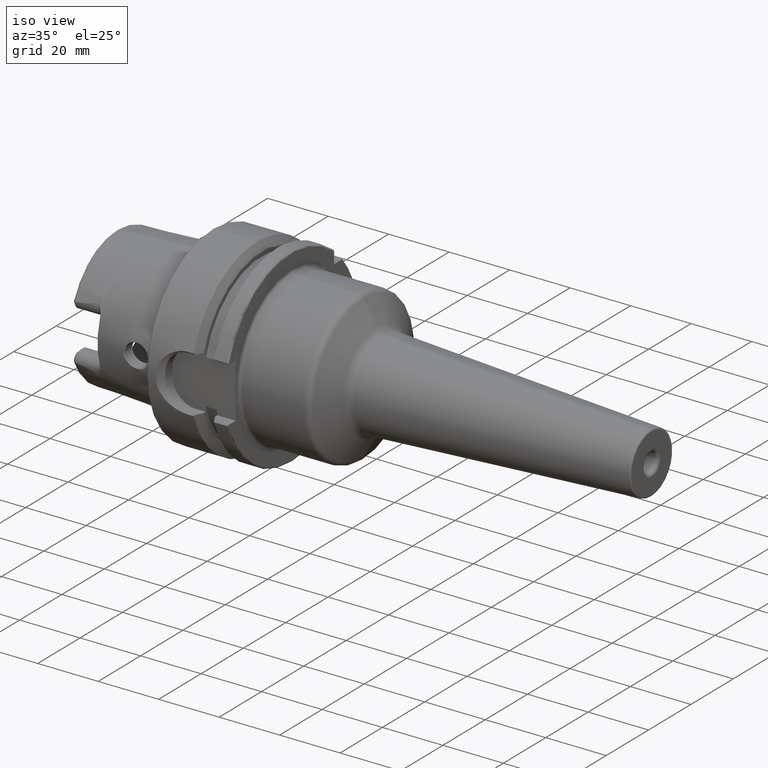
[diagram: clean part render]
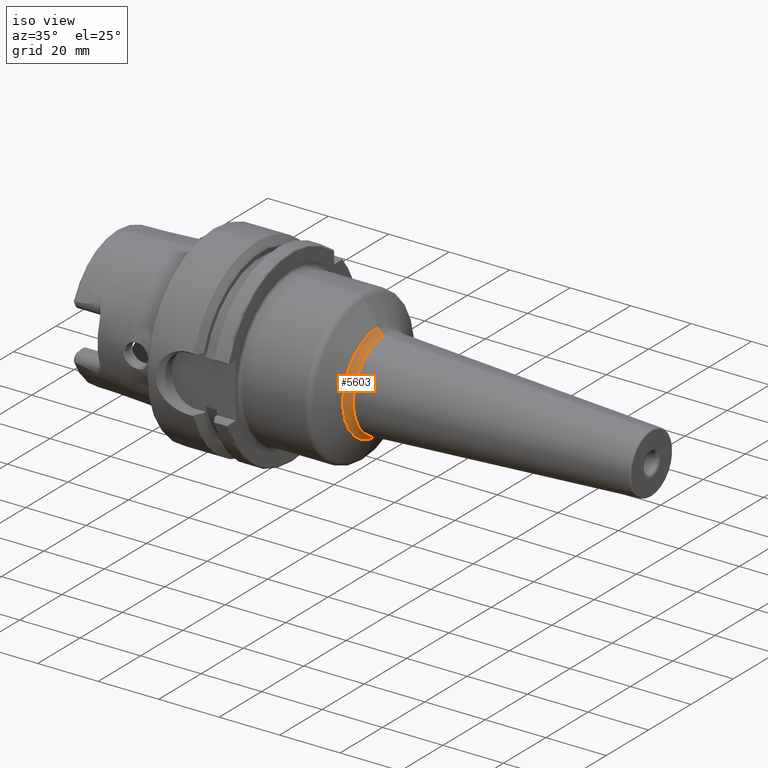
[diagram: same view with one face highlighted and labeled with its STEP entity id]
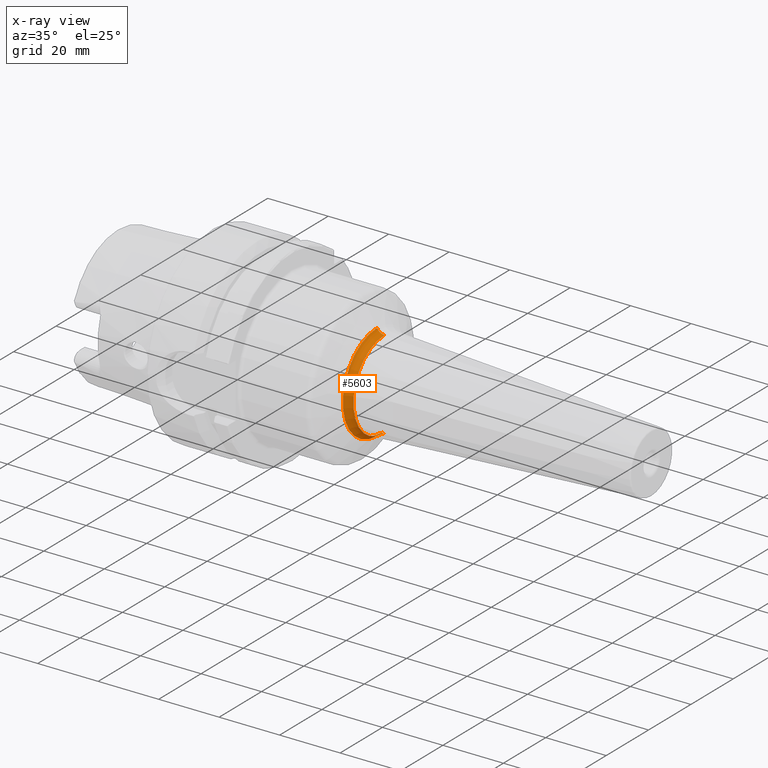
[diagram: x-ray of the same camera — body ghosted, the highlighted face saturated]
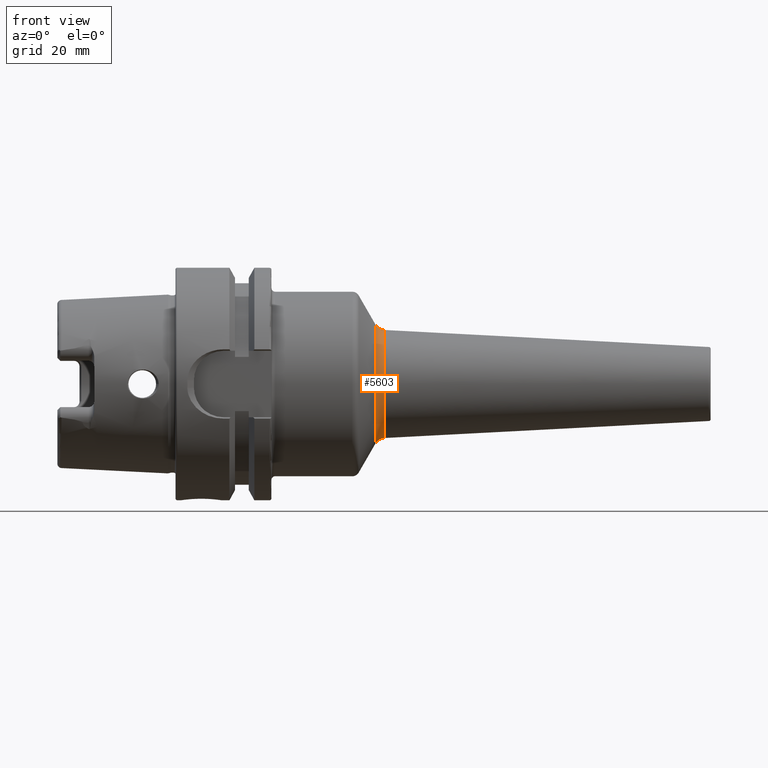
[diagram: same view with one face highlighted and labeled with its STEP entity id]
A machine part, iso view. The second image highlights one B-rep face of the part: STEP entity #5603.
The next image is the same camera in x-ray: the body ghosted, the highlighted face saturated — about 0% of this face is hidden behind the body in this view.
A second angle (front view) of the same face is appended — the face is thin or edge-on in the first view.
In plain terms, the highlighted toroidal blend (fillet) surface has major radius 17.6273 mm and minor (blend) radius 3 mm.
Its self-contained STEP definition (entity closure, byte-faithful):
#2326=CARTESIAN_POINT('',(5.418556645054E1,0.E0,0.E0));
#2327=DIRECTION('',(1.E0,0.E0,0.E0));
#2328=DIRECTION('',(0.E0,0.E0,1.E0));
#2329=AXIS2_PLACEMENT_3D('',#2326,#2327,#2328);
#2344=CARTESIAN_POINT('',(5.678364266190E1,1.805333660343E-12,
1.762734042252E1));
#2345=DIRECTION('',(0.E0,-1.E0,1.024146045747E-13));
#2346=DIRECTION('',(-8.660254037845E-1,-5.120730228734E-14,-4.999999999999E-1));
#2347=AXIS2_PLACEMENT_3D('',#2344,#2345,#2346);
#2349=CARTESIAN_POINT('',(5.678364266190E1,-1.807387572939E-12,
-1.762734042252E1));
#2350=DIRECTION('',(0.E0,1.E0,-1.025325657711E-13));
#2351=DIRECTION('',(-8.660254037845E-1,5.126628288553E-14,4.999999999999E-1));
#2352=AXIS2_PLACEMENT_3D('',#2349,#2350,#2351);
#2393=CARTESIAN_POINT('',(5.662663479317E1,0.E0,0.E0));
#2394=DIRECTION('',(1.E0,0.E0,0.E0));
#2395=DIRECTION('',(0.E0,0.E0,1.E0));
#2396=AXIS2_PLACEMENT_3D('',#2393,#2394,#2395);
#2942=CARTESIAN_POINT('',(5.418556645054E1,0.E0,1.612734042252E1));
#2943=CARTESIAN_POINT('',(5.418556645054E1,0.E0,-1.612734042252E1));
#2944=VERTEX_POINT('',#2942);
#2945=VERTEX_POINT('',#2943);
#2946=CARTESIAN_POINT('',(5.662663479317E1,0.E0,1.463145181826E1));
#2947=CARTESIAN_POINT('',(5.662663479317E1,0.E0,-1.463145181826E1));
#2948=VERTEX_POINT('',#2946);
#2949=VERTEX_POINT('',#2947);
#5589=CARTESIAN_POINT('',(5.678364266190E1,0.E0,0.E0));
#5590=DIRECTION('',(1.E0,0.E0,0.E0));
#5591=DIRECTION('',(0.E0,1.662093878731E-2,9.998618626560E-1));
#5592=AXIS2_PLACEMENT_3D('',#5589,#5590,#5591);
#5593=TOROIDAL_SURFACE('',#5592,1.762734042252E1,3.E0);
#5594=ORIENTED_EDGE('',*,*,#5579,.F.);
#5596=ORIENTED_EDGE('',*,*,#5595,.T.);
#5598=ORIENTED_EDGE('',*,*,#5597,.T.);
#5600=ORIENTED_EDGE('',*,*,#5599,.F.);
#5601=EDGE_LOOP('',(#5594,#5596,#5598,#5600));
#5602=FACE_OUTER_BOUND('',#5601,.F.);
#5603=ADVANCED_FACE('',(#5602),#5593,.F.);
#2330=CIRCLE('',#2329,1.612734042252E1);
#2348=CIRCLE('',#2347,3.E0);
#2353=CIRCLE('',#2352,3.E0);
#2397=CIRCLE('',#2396,1.463145181826E1);
#5579=EDGE_CURVE('',#2944,#2945,#2330,.T.);
#5595=EDGE_CURVE('',#2944,#2948,#2348,.T.);
#5597=EDGE_CURVE('',#2948,#2949,#2397,.T.);
#5599=EDGE_CURVE('',#2945,#2949,#2353,.T.);